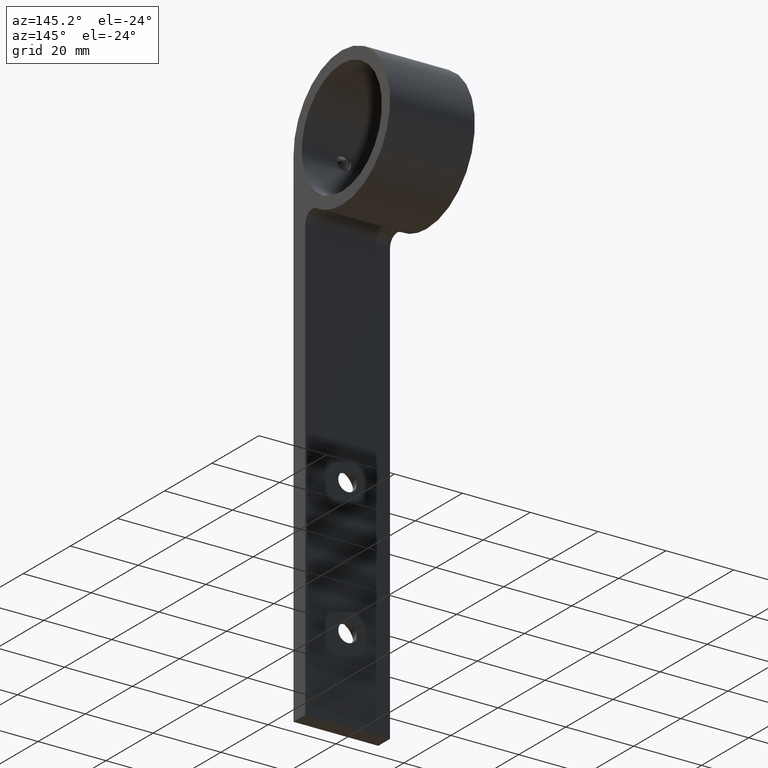
[diagram: clean part render]
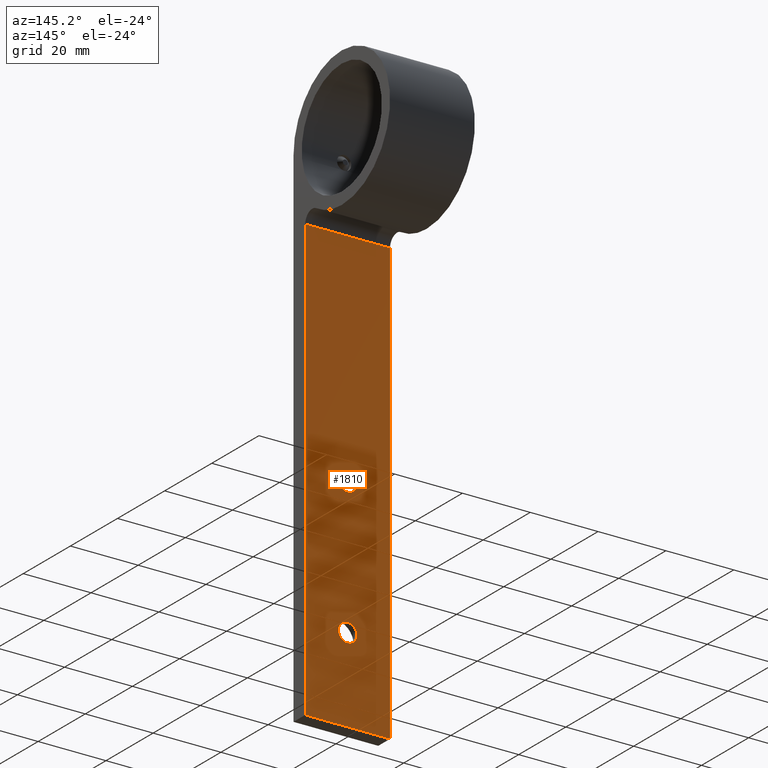
[diagram: same view with one face highlighted and labeled with its STEP entity id]
A machine part, auxiliary view. The second image highlights one B-rep face of the part: STEP entity #1810.
In plain terms, the highlighted planar face has unit normal (0, -1, -0).
Its self-contained STEP definition (entity closure, byte-faithful):
#291 = CIRCLE ( 'NONE', #2353, 2.750000000000002700 ) ;
#474 = FACE_OUTER_BOUND ( 'NONE', #12694, .T. ) ;
#1136 = CARTESIAN_POINT ( 'NONE',  ( -4.561809326823892200E-015, 4.999999999999991100, -82.24999999999998600 ) ) ;
#1220 = FACE_BOUND ( 'NONE', #13018, .T. ) ;
#1810 = ADVANCED_FACE ( 'NONE', ( #1220, #5668, #474 ), #3669, .F. ) ;
#1916 = DIRECTION ( 'NONE',  ( 0.0000000000000000000, -1.333585990310819800E-016, 1.000000000000000000 ) ) ;
#2353 = AXIS2_PLACEMENT_3D ( 'NONE', #12908, #9555, #6329 ) ;
#2373 = EDGE_CURVE ( 'NONE', #12650, #5526, #6339, .T. ) ;
#2611 = VERTEX_POINT ( 'NONE', #2877 ) ;
#2659 = DIRECTION ( 'NONE',  ( 0.0000000000000000000, 0.0000000000000000000, -1.000000000000000000 ) ) ;
#2877 = CARTESIAN_POINT ( 'NONE',  ( 3.367778697655213600E-016, 4.999999999999996400, -122.2500000000000000 ) ) ;
#2966 = CIRCLE ( 'NONE', #9224, 2.750000000000002700 ) ;
#3152 = LINE ( 'NONE', #12881, #11520 ) ;
#3235 = DIRECTION ( 'NONE',  ( 0.0000000000000000000, -1.000000000000000000, -1.333585990310819800E-016 ) ) ;
#3585 = ORIENTED_EDGE ( 'NONE', *, *, #11509, .T. ) ;
#3586 = EDGE_CURVE ( 'NONE', #8309, #4413, #8272, .T. ) ;
#3622 = DIRECTION ( 'NONE',  ( 0.0000000000000000000, 1.333585990310819800E-016, -1.000000000000000000 ) ) ;
#3669 = PLANE ( 'NONE',  #9468 ) ;
#4056 = CARTESIAN_POINT ( 'NONE',  ( 12.50000000000000000, 5.000000000000000000, -150.0000000000000000 ) ) ;
#4276 = VECTOR ( 'NONE', #12717, 1000.000000000000000 ) ;
#4413 = VERTEX_POINT ( 'NONE', #4910 ) ;
#4666 = VERTEX_POINT ( 'NONE', #7457 ) ;
#4838 = CARTESIAN_POINT ( 'NONE',  ( -12.50000000000000000, 5.000000000000000000, -150.0000000000000000 ) ) ;
#4910 = CARTESIAN_POINT ( 'NONE',  ( 12.50000000000000000, 4.999999999999983100, -19.89974874213237800 ) ) ;
#4920 = CARTESIAN_POINT ( 'NONE',  ( 0.0000000000000000000, 4.999999999999996400, -125.0000000000000000 ) ) ;
#4957 = ORIENTED_EDGE ( 'NONE', *, *, #13828, .T. ) ;
#5021 = EDGE_LOOP ( 'NONE', ( #4957, #11274 ) ) ;
#5127 = EDGE_CURVE ( 'NONE', #4666, #4413, #3152, .T. ) ;
#5196 = ORIENTED_EDGE ( 'NONE', *, *, #3586, .F. ) ;
#5314 = LINE ( 'NONE', #6177, #4276 ) ;
#5324 = ORIENTED_EDGE ( 'NONE', *, *, #13350, .T. ) ;
#5412 = CARTESIAN_POINT ( 'NONE',  ( 0.0000000000000000000, 4.999999999999996400, -125.0000000000000000 ) ) ;
#5526 = VERTEX_POINT ( 'NONE', #6038 ) ;
#5668 = FACE_BOUND ( 'NONE', #5021, .T. ) ;
#6038 = CARTESIAN_POINT ( 'NONE',  ( -4.898587196589413800E-015, 4.999999999999991100, -87.75000000000000000 ) ) ;
#6052 = DIRECTION ( 'NONE',  ( 1.000000000000000000, 0.0000000000000000000, 0.0000000000000000000 ) ) ;
#6107 = AXIS2_PLACEMENT_3D ( 'NONE', #9774, #8742, #7521 ) ;
#6177 = CARTESIAN_POINT ( 'NONE',  ( 12.50000000000000000, 5.000000000000000000, -150.0000000000000000 ) ) ;
#6329 = DIRECTION ( 'NONE',  ( 0.0000000000000000000, 0.0000000000000000000, -1.000000000000000000 ) ) ;
#6339 = CIRCLE ( 'NONE', #6107, 2.750000000000002700 ) ;
#6714 = VECTOR ( 'NONE', #10280, 1000.000000000000000 ) ;
#6727 = ORIENTED_EDGE ( 'NONE', *, *, #7324, .T. ) ;
#7324 = EDGE_CURVE ( 'NONE', #2611, #9033, #2966, .T. ) ;
#7457 = CARTESIAN_POINT ( 'NONE',  ( -12.50000000000000000, 4.999999999999983100, -19.89974874213237800 ) ) ;
#7521 = DIRECTION ( 'NONE',  ( 0.0000000000000000000, 0.0000000000000000000, -1.000000000000000000 ) ) ;
#7561 = CARTESIAN_POINT ( 'NONE',  ( 0.0000000000000000000, 4.999999999999996400, -127.7500000000000000 ) ) ;
#7751 = CIRCLE ( 'NONE', #7787, 2.750000000000002700 ) ;
#7787 = AXIS2_PLACEMENT_3D ( 'NONE', #5412, #3235, #13154 ) ;
#7938 = VECTOR ( 'NONE', #1916, 1000.000000000000000 ) ;
#8028 = CARTESIAN_POINT ( 'NONE',  ( 12.50000000000000000, 5.000000000000000000, -150.0000000000000000 ) ) ;
#8051 = CARTESIAN_POINT ( 'NONE',  ( 12.50000000000000000, 5.000000000000000000, -150.0000000000000000 ) ) ;
#8272 = LINE ( 'NONE', #4056, #7938 ) ;
#8309 = VERTEX_POINT ( 'NONE', #8028 ) ;
#8656 = VERTEX_POINT ( 'NONE', #9472 ) ;
#8742 = DIRECTION ( 'NONE',  ( 0.0000000000000000000, -1.000000000000000000, -1.333585990310819800E-016 ) ) ;
#9033 = VERTEX_POINT ( 'NONE', #7561 ) ;
#9224 = AXIS2_PLACEMENT_3D ( 'NONE', #4920, #10421, #2659 ) ;
#9468 = AXIS2_PLACEMENT_3D ( 'NONE', #8051, #10437, #3622 ) ;
#9472 = CARTESIAN_POINT ( 'NONE',  ( -12.50000000000000000, 5.000000000000000000, -150.0000000000000000 ) ) ;
#9555 = DIRECTION ( 'NONE',  ( 0.0000000000000000000, -1.000000000000000000, -1.333585990310819800E-016 ) ) ;
#9774 = CARTESIAN_POINT ( 'NONE',  ( -4.898587196589413800E-015, 4.999999999999991100, -84.99999999999998600 ) ) ;
#10280 = DIRECTION ( 'NONE',  ( 0.0000000000000000000, -1.333585990310819800E-016, 1.000000000000000000 ) ) ;
#10421 = DIRECTION ( 'NONE',  ( 0.0000000000000000000, -1.000000000000000000, -1.333585990310819800E-016 ) ) ;
#10437 = DIRECTION ( 'NONE',  ( 0.0000000000000000000, -1.000000000000000000, -1.333585990310819800E-016 ) ) ;
#10494 = ORIENTED_EDGE ( 'NONE', *, *, #5127, .T. ) ;
#11274 = ORIENTED_EDGE ( 'NONE', *, *, #2373, .T. ) ;
#11433 = LINE ( 'NONE', #4838, #6714 ) ;
#11509 = EDGE_CURVE ( 'NONE', #8656, #4666, #11433, .T. ) ;
#11520 = VECTOR ( 'NONE', #6052, 1000.000000000000000 ) ;
#11582 = EDGE_CURVE ( 'NONE', #8309, #8656, #5314, .T. ) ;
#12650 = VERTEX_POINT ( 'NONE', #1136 ) ;
#12694 = EDGE_LOOP ( 'NONE', ( #3585, #10494, #5196, #13242 ) ) ;
#12717 = DIRECTION ( 'NONE',  ( -1.000000000000000000, -0.0000000000000000000, -0.0000000000000000000 ) ) ;
#12881 = CARTESIAN_POINT ( 'NONE',  ( 12.50000000000000000, 4.999999999999983100, -19.89974874213238500 ) ) ;
#12908 = CARTESIAN_POINT ( 'NONE',  ( -4.898587196589413800E-015, 4.999999999999991100, -84.99999999999998600 ) ) ;
#13018 = EDGE_LOOP ( 'NONE', ( #5324, #6727 ) ) ;
#13154 = DIRECTION ( 'NONE',  ( 0.0000000000000000000, 0.0000000000000000000, -1.000000000000000000 ) ) ;
#13242 = ORIENTED_EDGE ( 'NONE', *, *, #11582, .T. ) ;
#13350 = EDGE_CURVE ( 'NONE', #9033, #2611, #7751, .T. ) ;
#13828 = EDGE_CURVE ( 'NONE', #5526, #12650, #291, .T. ) ;